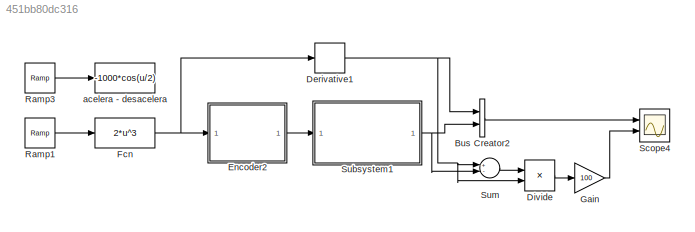
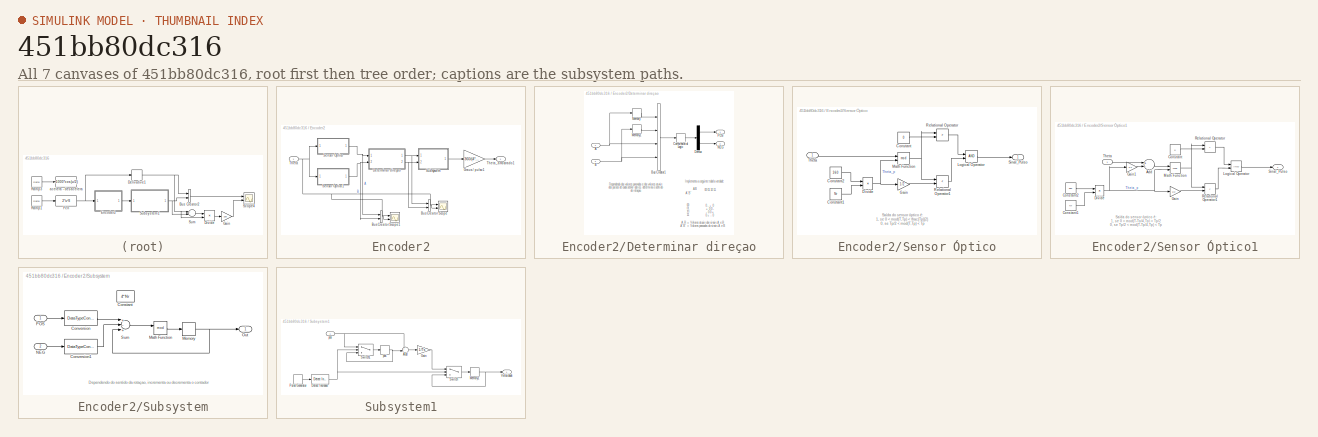
[diagram: thumbnail index - all 7 canvases of the model, root first then tree order]
MODEL slx_451bb80dc316
KIND model
BLOCK [BusCreator] Bus Creator2
  DisplayOption = bar
  Inputs = 2
  Ports = [2, 1]
BLOCK [Derivative] Derivative1
BLOCK [Product] Divide
  InputSameDT = off
  Inputs = */
  OutDataTypeStr = Inherit: Inherit via internal rule
  Ports = [2, 1]
  RndMeth = Floor
  SaturateOnIntegerOverflow = off
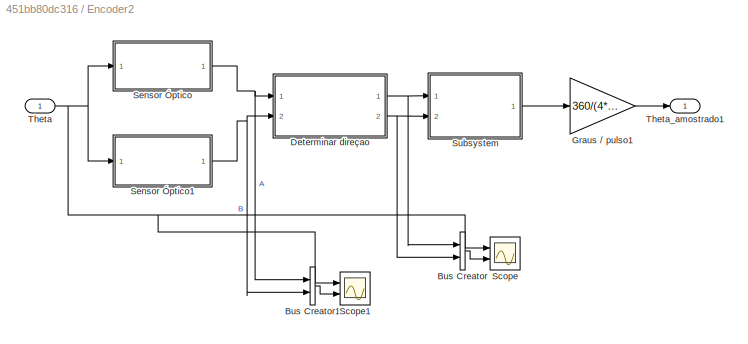
BLOCK [SubSystem] Encoder2
  FunctionWithSeparateData = off
  MaskHideContents = off
  MinAlgLoopOccurrences = off
  Opaque = off
  Ports = [1, 1]
  PropExecContextOutsideSubsystem = off
  RTWSystemCode = Auto
  RequestExecContextInheritance = off
BLOCK [BusCreator] Encoder2/Bus Creator
  DisplayOption = bar
  Inputs = 2
  Ports = [2, 1]
BLOCK [BusCreator] Encoder2/Bus Creator1
  DisplayOption = bar
  Inputs = 2
  Ports = [2, 1]
BLOCK [SubSystem] Encoder2/Determinar direçao
  FunctionWithSeparateData = off
  MaskHideContents = off
  MinAlgLoopOccurrences = off
  Opaque = off
  Ports = [2, 2]
  PropExecContextOutsideSubsystem = off
  RTWSystemCode = Auto
  RequestExecContextInheritance = off
BLOCK [Inport] Encoder2/Determinar direçao/A
  IconDisplay = Port number
BLOCK [Inport] Encoder2/Determinar direçao/B
  IconDisplay = Port number
  Port = 2
BLOCK [BusCreator] Encoder2/Determinar direçao/Bus Creator1
  DisplayOption = bar
  Ports = [4, 1]
BLOCK [CombinatorialLogic] Encoder2/Determinar direçao/Combinatorial  Logic
  TruthTable = [ 0 0 ; 0 1 ; 1 0 ; 0 0 ; 1 0 ; 0 0 ; 0 0 ; 0 1 ; 0 1 ; 0 0 ; 0 0 ; 1 0 ; 0 0 ; 1 0 ; 0 1 ; 0 0]
BLOCK [Demux] Encoder2/Determinar direçao/Demux
  DisplayOption = bar
  Outputs = 2
  Ports = [1, 2]
BLOCK [Memory] Encoder2/Determinar direçao/Memory
BLOCK [Memory] Encoder2/Determinar direçao/Memory1
BLOCK [Outport] Encoder2/Determinar direçao/NEG
  IconDisplay = Port number
  Port = 2
BLOCK [Outport] Encoder2/Determinar direçao/POS
  IconDisplay = Port number
BLOCK [Gain] Encoder2/Graus // pulso1
  Gain = 360/(4*Nr)
  OutDataTypeStr = double
  ParamDataTypeStr = Inherit: Inherit via internal rule
  SaturateOnIntegerOverflow = off
BLOCK [Scope] Encoder2/Scope
  DataFormat = StructureWithTime
  Floating = off
  LimitDataPoints = off
  NumInputPorts = 2
  Ports = [2]
  SampleTime = 0
  SaveName = ScopeData5
  ShowLegends = off
  YMax = 1.5~5
  YMin = -1~-5
  ZoomMode = xonly
BLOCK [Scope] Encoder2/Scope1
  DataFormat = StructureWithTime
  Floating = off
  LimitDataPoints = off
  NumInputPorts = 2
  Ports = [2]
  SampleTime = 0
  SaveName = ScopeData6
  ShowLegends = off
  YMax = 1.5~5
  YMin = -1~-5
  ZoomMode = xonly
BLOCK [SubSystem] Encoder2/Sensor Óptico
  FunctionWithSeparateData = off
  MaskHideContents = off
  MinAlgLoopOccurrences = off
  Opaque = off
  Ports = [1, 1]
  PropExecContextOutsideSubsystem = off
  RTWSystemCode = Auto
  RequestExecContextInheritance = off
BLOCK [Constant] Encoder2/Sensor Óptico/Constant
  Value = 0
BLOCK [Constant] Encoder2/Sensor Óptico/Constant1
  Value = Nr
BLOCK [Constant] Encoder2/Sensor Óptico/Constant2
  Value = 360
BLOCK [Product] Encoder2/Sensor Óptico/Divide
  InputSameDT = off
  Inputs = */
  OutDataTypeStr = Inherit: Inherit via internal rule
  Ports = [2, 1]
  RndMeth = Floor
  SaturateOnIntegerOverflow = off
BLOCK [Gain] Encoder2/Sensor Óptico/Gain
  Gain = 1/2
  OutDataTypeStr = Inherit: Inherit via internal rule
  ParamDataTypeStr = Inherit: Inherit via internal rule
  SaturateOnIntegerOverflow = off
BLOCK [Logic] Encoder2/Sensor Óptico/Logical Operator
  AllPortsSameDT = off
  OutDataTypeStr = boolean
  Ports = [2, 1]
BLOCK [Math] Encoder2/Sensor Óptico/Math Function
  Operator = mod
  Ports = [2, 1]
BLOCK [RelationalOperator] Encoder2/Sensor Óptico/Relational Operator
  InputSameDT = off
  Operator = >
  OutDataTypeStr = boolean
  Ports = [2, 1]
BLOCK [RelationalOperator] Encoder2/Sensor Óptico/Relational Operator1
  InputSameDT = off
  Operator = <
  OutDataTypeStr = boolean
  Ports = [2, 1]
BLOCK [Outport] Encoder2/Sensor Óptico/Sinal_Pulso
  IconDisplay = Port number
BLOCK [Inport] Encoder2/Sensor Óptico/Theta
  IconDisplay = Port number
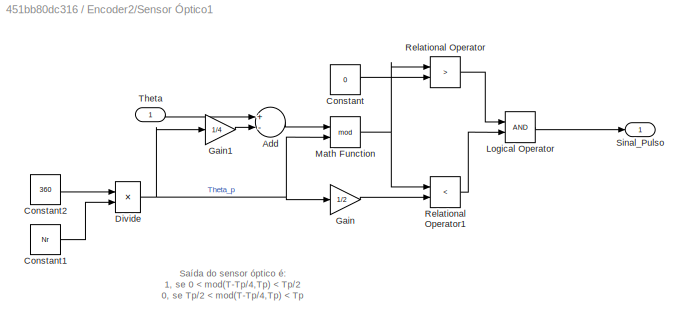
BLOCK [SubSystem] Encoder2/Sensor Óptico1
  FunctionWithSeparateData = off
  MaskHideContents = off
  MinAlgLoopOccurrences = off
  Opaque = off
  Ports = [1, 1]
  PropExecContextOutsideSubsystem = off
  RTWSystemCode = Auto
  RequestExecContextInheritance = off
BLOCK [Sum] Encoder2/Sensor Óptico1/Add
  InputSameDT = off
  Inputs = +-
  OutDataTypeStr = Inherit: Inherit via internal rule
  Ports = [2, 1]
  SaturateOnIntegerOverflow = off
BLOCK [Constant] Encoder2/Sensor Óptico1/Constant
  Value = 0
BLOCK [Constant] Encoder2/Sensor Óptico1/Constant1
  Value = Nr
BLOCK [Constant] Encoder2/Sensor Óptico1/Constant2
  Value = 360
BLOCK [Product] Encoder2/Sensor Óptico1/Divide
  InputSameDT = off
  Inputs = */
  OutDataTypeStr = Inherit: Inherit via internal rule
  Ports = [2, 1]
  RndMeth = Floor
  SaturateOnIntegerOverflow = off
BLOCK [Gain] Encoder2/Sensor Óptico1/Gain
  Gain = 1/2
  OutDataTypeStr = Inherit: Inherit via internal rule
  ParamDataTypeStr = Inherit: Inherit via internal rule
  SaturateOnIntegerOverflow = off
BLOCK [Gain] Encoder2/Sensor Óptico1/Gain1
  Gain = 1/4
  OutDataTypeStr = Inherit: Inherit via internal rule
  ParamDataTypeStr = Inherit: Inherit via internal rule
  SaturateOnIntegerOverflow = off
BLOCK [Logic] Encoder2/Sensor Óptico1/Logical Operator
  AllPortsSameDT = off
  OutDataTypeStr = boolean
  Ports = [2, 1]
BLOCK [Math] Encoder2/Sensor Óptico1/Math Function
  Operator = mod
  Ports = [2, 1]
BLOCK [RelationalOperator] Encoder2/Sensor Óptico1/Relational Operator
  InputSameDT = off
  Operator = >
  OutDataTypeStr = boolean
  Ports = [2, 1]
BLOCK [RelationalOperator] Encoder2/Sensor Óptico1/Relational Operator1
  InputSameDT = off
  Operator = <
  OutDataTypeStr = boolean
  Ports = [2, 1]
BLOCK [Outport] Encoder2/Sensor Óptico1/Sinal_Pulso
  IconDisplay = Port number
BLOCK [Inport] Encoder2/Sensor Óptico1/Theta
  IconDisplay = Port number
BLOCK [SubSystem] Encoder2/Subsystem
  FunctionWithSeparateData = off
  MaskHideContents = off
  MinAlgLoopOccurrences = off
  Opaque = off
  Ports = [2, 1]
  PropExecContextOutsideSubsystem = off
  RTWSystemCode = Auto
  RequestExecContextInheritance = off
BLOCK [Constant] Encoder2/Subsystem/Constant
  Value = 4*Nr
BLOCK [DataTypeConversion] Encoder2/Subsystem/Conversion
  OutDataTypeStr = int32
  RndMeth = Floor
  SaturateOnIntegerOverflow = off
BLOCK [DataTypeConversion] Encoder2/Subsystem/Conversion1
  OutDataTypeStr = int32
  RndMeth = Floor
  SaturateOnIntegerOverflow = off
BLOCK [Math] Encoder2/Subsystem/Math Function
  Operator = mod
  Ports = [2, 1]
BLOCK [Memory] Encoder2/Subsystem/Memory
BLOCK [Inport] Encoder2/Subsystem/NEG
  IconDisplay = Port number
  Port = 2
BLOCK [Outport] Encoder2/Subsystem/Out
  IconDisplay = Port number
BLOCK [Inport] Encoder2/Subsystem/POS
  IconDisplay = Port number
BLOCK [Sum] Encoder2/Subsystem/Sum
  InputSameDT = off
  Inputs = +-+
  OutDataTypeStr = Inherit: Inherit via internal rule
  Ports = [3, 1]
  SaturateOnIntegerOverflow = off
BLOCK [Inport] Encoder2/Theta
  IconDisplay = Port number
BLOCK [Outport] Encoder2/Theta_amostrado1
  IconDisplay = Port number
BLOCK [Fcn] Fcn
  Expr = 2*u^3
BLOCK [Gain] Gain
  Gain = 100
  OutDataTypeStr = Inherit: Inherit via internal rule
  ParamDataTypeStr = Inherit: Inherit via internal rule
  SaturateOnIntegerOverflow = off
BLOCK [Reference] Ramp1  REF=simulink/Sources/Ramp
  Ports = [0, 1]
  SourceBlock = simulink/Sources/Ramp
  SourceType = Ramp
  VectorParams1D = on
  X0 = 0
  slope = 10
  start = 0
BLOCK [Reference] Ramp3  REF=simulink/Sources/Ramp
  Ports = [0, 1]
  SourceBlock = simulink/Sources/Ramp
  SourceType = Ramp
  VectorParams1D = on
  X0 = 0
  slope = 2*pi
  start = 0
BLOCK [Scope] Scope4
  DataFormat = StructureWithTime
  Floating = off
  LimitDataPoints = off
  NumInputPorts = 2
  Ports = [2]
  SampleTime = 0
  SaveName = ScopeData4
  ShowLegends = off
  TickLabels = on
  YMax = 30~30
  YMin = 0~-30
  ZoomMode = yonly
BLOCK [SubSystem] Subsystem1
  FunctionWithSeparateData = off
  MaskHideContents = off
  MinAlgLoopOccurrences = off
  Opaque = off
  Ports = [1, 1]
  PropExecContextOutsideSubsystem = off
  RTWSystemCode = Auto
  RequestExecContextInheritance = off
BLOCK [Sum] Subsystem1/Add
  IconShape = round
  InputSameDT = off
  Inputs = +-|
  OutDataTypeStr = Inherit: Inherit via internal rule
  Ports = [2, 1]
  SaturateOnIntegerOverflow = off
BLOCK [Reference] Subsystem1/Detect Increase  REF=simulink/Logic and Bit
Operations/Detect
Increase
  InputProcessing = Inherited
  OutDataTypeStr = boolean
  Ports = [1, 1]
  SourceBlock = simulink/Logic and Bit\nOperations/Detect\nIncrease
  SourceType = Detect Increase
  vinit = 0.0
BLOCK [Gain] Subsystem1/Gain
  Gain = 1/Ts
  OutDataTypeStr = Inherit: Inherit via internal rule
  ParamDataTypeStr = Inherit: Inherit via internal rule
  SaturateOnIntegerOverflow = off
BLOCK [Memory] Subsystem1/Memory1
BLOCK [DiscretePulseGenerator] Subsystem1/Pulse Generator
  Period = Ts
  Ports = [0, 1]
  PulseType = Time based
  PulseWidth = 50
BLOCK [Switch] Subsystem1/Switch
  InputSameDT = off
  SaturateOnIntegerOverflow = off
BLOCK [Switch] Subsystem1/Switch1
  InputSameDT = off
  SaturateOnIntegerOverflow = off
BLOCK [Outport] Subsystem1/Velocidade
  IconDisplay = Port number
BLOCK [Inport] Subsystem1/pos
  IconDisplay = Port number
BLOCK [Memory] Subsystem1/pos'
BLOCK [Sum] Sum
  InputSameDT = off
  Inputs = +-
  OutDataTypeStr = Inherit: Inherit via internal rule
  Ports = [2, 1]
  SaturateOnIntegerOverflow = off
BLOCK [Fcn] acelera - desacelera
  Expr = -1000*cos(u/2)
ANNOTATION Encoder2/Determinar direçao: 0 - + 0 + 0 0 - - 0 0 + 0 + - 0
ANNOTATION Encoder2/Determinar direçao: 00 01 10 11
ANNOTATION Encoder2/Determinar direçao: A'B'
ANNOTATION Encoder2/Determinar direçao: A,B = Valores atuais dos sinais A e B A'B' = Valores passados do sinais A e B
ANNOTATION Encoder2/Determinar direçao: AB
ANNOTATION Encoder2/Determinar direçao: Dependendo dos valores passados e dos valores atuais dos pulsos de cada sensor óptico, determina o sentido de rotaçao.
ANNOTATION Encoder2/Determinar direçao: Implementa a seguinte tabela verdade:
ANNOTATION Encoder2/Sensor Óptico: Saída do sensor óptico é: 1, se 0 < mod(T,Tp) < \frac{Tp}{2} 0, se Tp/2 < mod(T,Tp) < Tp
ANNOTATION Encoder2/Sensor Óptico1: Saída do sensor óptico é: 1, se 0 < mod(T-Tp/4,Tp) < Tp/2 0, se Tp/2 < mod(T-Tp/4,Tp) < Tp
ANNOTATION Encoder2/Subsystem: Dependendo do sentido da rotaçao, incrementa ou decrementa o contador
LINE Bus Creator2:1 -> Scope4:1
NET Derivative1:1 -> Bus Creator2:1, Divide:2, Sum:1
LINE Divide:1 -> Gain:1
LINE Encoder2/Bus Creator1:1 -> Encoder2/Scope1:2
LINE Encoder2/Bus Creator:1 -> Encoder2/Scope:2
NET Encoder2/Determinar direçao/A:1 -> Encoder2/Determinar direçao/Bus Creator1:3, Encoder2/Determinar direçao/Memory:1
NET Encoder2/Determinar direçao/B:1 -> Encoder2/Determinar direçao/Bus Creator1:4, Encoder2/Determinar direçao/Memory1:1
LINE Encoder2/Determinar direçao/Bus Creator1:1 -> Encoder2/Determinar direçao/Combinatorial  Logic:1
LINE Encoder2/Determinar direçao/Combinatorial  Logic:1 -> Encoder2/Determinar direçao/Demux:1
LINE Encoder2/Determinar direçao/Demux:1 -> Encoder2/Determinar direçao/POS:1
LINE Encoder2/Determinar direçao/Demux:2 -> Encoder2/Determinar direçao/NEG:1
LINE Encoder2/Determinar direçao/Memory1:1 -> Encoder2/Determinar direçao/Bus Creator1:2
LINE Encoder2/Determinar direçao/Memory:1 -> Encoder2/Determinar direçao/Bus Creator1:1
NET Encoder2/Determinar direçao:1 -> Encoder2/Bus Creator:1, Encoder2/Subsystem:1
NET Encoder2/Determinar direçao:2 -> Encoder2/Bus Creator:2, Encoder2/Subsystem:2
LINE Encoder2/Graus // pulso1:1 -> Encoder2/Theta_amostrado1:1
LINE Encoder2/Sensor Óptico/Constant1:1 -> Encoder2/Sensor Óptico/Divide:2
LINE Encoder2/Sensor Óptico/Constant2:1 -> Encoder2/Sensor Óptico/Divide:1
LINE Encoder2/Sensor Óptico/Constant:1 -> Encoder2/Sensor Óptico/Relational Operator:2
NET Encoder2/Sensor Óptico/Divide:1 -> Encoder2/Sensor Óptico/Gain:1, Encoder2/Sensor Óptico/Math Function:2
LINE Encoder2/Sensor Óptico/Gain:1 -> Encoder2/Sensor Óptico/Relational Operator1:2
LINE Encoder2/Sensor Óptico/Logical Operator:1 -> Encoder2/Sensor Óptico/Sinal_Pulso:1
NET Encoder2/Sensor Óptico/Math Function:1 -> Encoder2/Sensor Óptico/Relational Operator1:1, Encoder2/Sensor Óptico/Relational Operator:1
LINE Encoder2/Sensor Óptico/Relational Operator1:1 -> Encoder2/Sensor Óptico/Logical Operator:2
LINE Encoder2/Sensor Óptico/Relational Operator:1 -> Encoder2/Sensor Óptico/Logical Operator:1
LINE Encoder2/Sensor Óptico/Theta:1 -> Encoder2/Sensor Óptico/Math Function:1
LINE Encoder2/Sensor Óptico1/Add:1 -> Encoder2/Sensor Óptico1/Math Function:1
LINE Encoder2/Sensor Óptico1/Constant1:1 -> Encoder2/Sensor Óptico1/Divide:2
LINE Encoder2/Sensor Óptico1/Constant2:1 -> Encoder2/Sensor Óptico1/Divide:1
LINE Encoder2/Sensor Óptico1/Constant:1 -> Encoder2/Sensor Óptico1/Relational Operator:2
NET Encoder2/Sensor Óptico1/Divide:1 -> Encoder2/Sensor Óptico1/Gain1:1, Encoder2/Sensor Óptico1/Gain:1, Encoder2/Sensor Óptico1/Math Function:2
LINE Encoder2/Sensor Óptico1/Gain1:1 -> Encoder2/Sensor Óptico1/Add:2
LINE Encoder2/Sensor Óptico1/Gain:1 -> Encoder2/Sensor Óptico1/Relational Operator1:2
LINE Encoder2/Sensor Óptico1/Logical Operator:1 -> Encoder2/Sensor Óptico1/Sinal_Pulso:1
NET Encoder2/Sensor Óptico1/Math Function:1 -> Encoder2/Sensor Óptico1/Relational Operator1:1, Encoder2/Sensor Óptico1/Relational Operator:1
LINE Encoder2/Sensor Óptico1/Relational Operator1:1 -> Encoder2/Sensor Óptico1/Logical Operator:2
LINE Encoder2/Sensor Óptico1/Relational Operator:1 -> Encoder2/Sensor Óptico1/Logical Operator:1
LINE Encoder2/Sensor Óptico1/Theta:1 -> Encoder2/Sensor Óptico1/Add:1
NET Encoder2/Sensor Óptico1:1 -> Encoder2/Bus Creator1:2, Encoder2/Determinar direçao:2
NET Encoder2/Sensor Óptico:1 -> Encoder2/Bus Creator1:1, Encoder2/Determinar direçao:1
LINE Encoder2/Subsystem/Conversion1:1 -> Encoder2/Subsystem/Sum:2
LINE Encoder2/Subsystem/Conversion:1 -> Encoder2/Subsystem/Sum:1
LINE Encoder2/Subsystem/Math Function:1 -> Encoder2/Subsystem/Memory:1
NET Encoder2/Subsystem/Memory:1 -> Encoder2/Subsystem/Out:1, Encoder2/Subsystem/Sum:3
LINE Encoder2/Subsystem/NEG:1 -> Encoder2/Subsystem/Conversion1:1
LINE Encoder2/Subsystem/POS:1 -> Encoder2/Subsystem/Conversion:1
LINE Encoder2/Subsystem/Sum:1 -> Encoder2/Subsystem/Math Function:1
LINE Encoder2/Subsystem:1 -> Encoder2/Graus // pulso1:1
NET Encoder2/Theta:1 -> Encoder2/Scope1:1, Encoder2/Scope:1, Encoder2/Sensor Óptico1:1, Encoder2/Sensor Óptico:1
LINE Encoder2:1 -> Subsystem1:1
NET Fcn:1 -> Derivative1:1, Encoder2:1
LINE Gain:1 -> Scope4:2
LINE Ramp1:1 -> Fcn:1
LINE Ramp3:1 -> acelera - desacelera:1
LINE Subsystem1/Add:1 -> Subsystem1/Gain:1
NET Subsystem1/Detect Increase:1 -> Subsystem1/Switch1:2, Subsystem1/Switch:2
LINE Subsystem1/Gain:1 -> Subsystem1/Switch:1
NET Subsystem1/Memory1:1 -> Subsystem1/Switch:3, Subsystem1/Velocidade:1
LINE Subsystem1/Pulse Generator:1 -> Subsystem1/Detect Increase:1
LINE Subsystem1/Switch1:1 -> Subsystem1/pos':1
LINE Subsystem1/Switch:1 -> Subsystem1/Memory1:1
NET Subsystem1/pos':1 -> Subsystem1/Add:2, Subsystem1/Switch1:3
NET Subsystem1/pos:1 -> Subsystem1/Add:1, Subsystem1/Switch1:1
NET Subsystem1:1 -> Bus Creator2:2, Sum:2
LINE Sum:1 -> Divide:1
note: NET lines group one-source signal fan-out (src -> all destinations, sorted); 1:1 wires keep LINE
